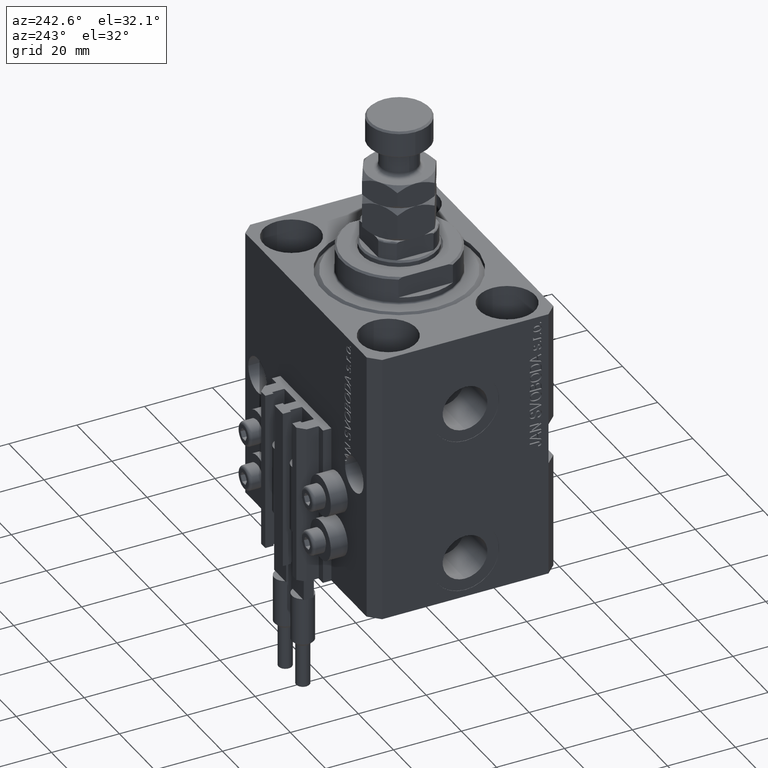
[diagram: clean part render]
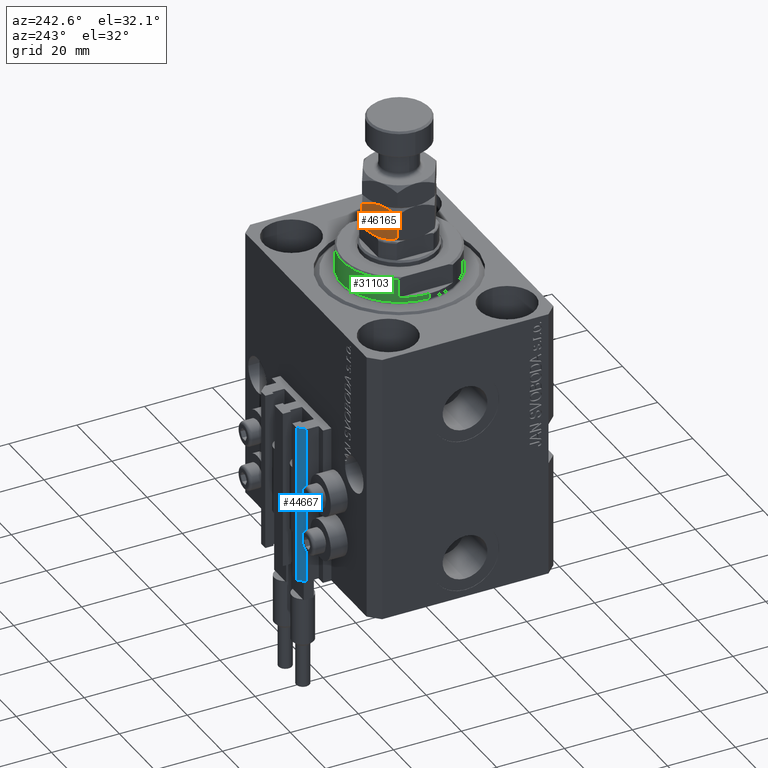
[diagram: same view with three faces highlighted in distinct colors, each labeled with its STEP entity id]
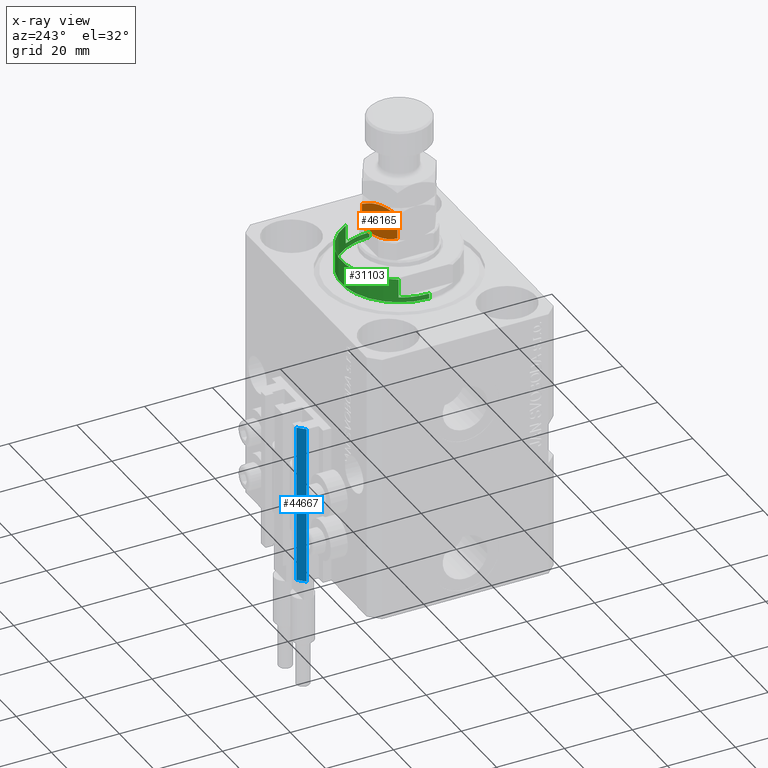
[diagram: x-ray of the same camera — body ghosted, the three highlighted faces saturated]
A machine part, auxiliary view with three faces highlighted in distinct colors.
The next image is the same camera in x-ray (body ghosted, the three faces saturated) — at least one of them is partly hidden behind the body in this view.
Their STEP definitions:

[orange] entity #46165 — the highlighted planar face has unit normal (0.5, -0.866, 0).
#104 = ORIENTED_EDGE ( 'NONE', *, *, #16884, .T. ) ;
#827 = CARTESIAN_POINT ( 'NONE',  ( -4.749999999999993783, 8.227241335952166779, 10.00000000000000000 ) ) ;
#1832 = VERTEX_POINT ( 'NONE', #28460 ) ;
#2153 = CARTESIAN_POINT ( 'NONE',  ( -3.111617971331824162, 9.173161641239182984, 0.1458756157754679816 ) ) ;
#4069 = CARTESIAN_POINT ( 'NONE',  ( -0.7448681452486597410, 10.53960529043279770, 8.960394709567207627 ) ) ;
#5522 = ORIENTED_EDGE ( 'NONE', *, *, #31213, .F. ) ;
#7882 = B_SPLINE_CURVE_WITH_KNOTS ( 'NONE', 3,
 ( #38230, #4069, #19270, #15525, #30749, #45931, #34987, #827 ),
 .UNSPECIFIED., .F., .F.,
 ( 4, 2, 2, 4 ),
 ( 2.544312669947217931E-07, 0.002843014744722341131, 0.004264394901450013070, 0.005685775058177684575 ),
 .UNSPECIFIED. ) ;
#9681 = DIRECTION ( 'NONE',  ( 0.4999999999999995004, -0.8660254037844390407, 0.000000000000000000 ) ) ;
#10819 = ORIENTED_EDGE ( 'NONE', *, *, #45785, .F. ) ;
#11235 = ORIENTED_EDGE ( 'NONE', *, *, #27668, .F. ) ;
#11771 = VERTEX_POINT ( 'NONE', #20514 ) ;
#12054 = CARTESIAN_POINT ( 'NONE',  ( -5.576215397865946777, 7.750225653585649077, 10.00000000000000000 ) ) ;
#13876 = B_SPLINE_CURVE_WITH_KNOTS ( 'NONE', 3,
 ( #36321, #43071, #2153, #47279, #24116, #39322 ),
 .UNSPECIFIED., .F., .F.,
 ( 4, 2, 4 ),
 ( 0.005685775058177695851, 0.008508623398180325398, 0.01133147173818295494 ),
 .UNSPECIFIED. ) ;
#14574 = CARTESIAN_POINT ( 'NONE',  ( -8.755131854751338594, 5.914877381471542961, 1.039605290432796147 ) ) ;
#14630 = PLANE ( 'NONE',  #28799 ) ;
#14810 = ORIENTED_EDGE ( 'NONE', *, *, #28692, .F. ) ;
#15525 = CARTESIAN_POINT ( 'NONE',  ( -2.690254945947323506, 9.416435697371474234, 9.716537861568806278 ) ) ;
#16499 = CARTESIAN_POINT ( 'NONE',  ( -9.500000000000000000, 5.484827557301449552, 10.00000000000000000 ) ) ;
#16884 = EDGE_CURVE ( 'NONE', #11771, #1832, #33024, .T. ) ;
#18799 = CARTESIAN_POINT ( 'NONE',  ( -5.588267949974988547, 7.743267109381076096, 0.03770576873300184734 ) ) ;
#18933 = VERTEX_POINT ( 'NONE', #28152 ) ;
#19040 = VERTEX_POINT ( 'NONE', #36628 ) ;
#19270 = CARTESIAN_POINT ( 'NONE',  ( -1.506594318812380706, 10.09982247907699993, 9.325825117528726338 ) ) ;
#19745 = DIRECTION ( 'NONE',  ( -0.000000000000000000, -0.000000000000000000, -1.000000000000000000 ) ) ;
#19854 = CARTESIAN_POINT ( 'NONE',  ( -9.500000000000000000, 5.484827557301450440, 8.530344885397113330 ) ) ;
#20514 = CARTESIAN_POINT ( 'NONE',  ( -3.412354640325339130E-17, 10.96965511460288667, 8.530344885397118659 ) ) ;
#21333 = VERTEX_POINT ( 'NONE', #48012 ) ;
#22052 = CARTESIAN_POINT ( 'NONE',  ( -4.749999999999995559, 8.227241335952170331, 0.000000000000000000 ) ) ;
#22543 = CARTESIAN_POINT ( 'NONE',  ( -7.993405681187618406, 6.354660192827338960, 0.6741748824712797683 ) ) ;
#23514 = CARTESIAN_POINT ( 'NONE',  ( -7.990178599141542826, 6.356523349515339483, 9.328363030548731061 ) ) ;
#23612 = VERTEX_POINT ( 'NONE', #19854 ) ;
#24116 = CARTESIAN_POINT ( 'NONE',  ( -0.7440058743609621050, 10.54010312276192174, 1.040103122761827148 ) ) ;
#25856 = DIRECTION ( 'NONE',  ( 0.8660254037844389297, 0.4999999999999994449, 0.000000000000000000 ) ) ;
#26541 = CARTESIAN_POINT ( 'NONE',  ( -9.500000000000000000, 5.484827557301450440, 1.469655114602887114 ) ) ;
#27668 = EDGE_CURVE ( 'NONE', #19040, #1832, #13876, .T. ) ;
#28152 = CARTESIAN_POINT ( 'NONE',  ( -4.749999999999993783, 8.227241335952166779, 10.00000000000000000 ) ) ;
#28460 = CARTESIAN_POINT ( 'NONE',  ( 7.043584025308272669E-16, 10.96965511460288667, 1.469655114602882007 ) ) ;
#28692 = EDGE_CURVE ( 'NONE', #11771, #18933, #7882, .T. ) ;
#28799 = AXIS2_PLACEMENT_3D ( 'NONE', #43829, #9681, #25856 ) ;
#30010 = CARTESIAN_POINT ( 'NONE',  ( -8.755994125639032788, 5.914379549142415371, 8.959896877238170632 ) ) ;
#30749 = CARTESIAN_POINT ( 'NONE',  ( -3.091726368128223879, 9.184646063703393537, 9.820258145287965590 ) ) ;
#30756 = CARTESIAN_POINT ( 'NONE',  ( -4.749999999999993783, 8.227241335952166779, 10.00000000000000000 ) ) ;
#31213 = EDGE_CURVE ( 'NONE', #21333, #19040, #42806, .T. ) ;
#32698 = VECTOR ( 'NONE', #37265, 1000.000000000000000 ) ;
#33024 = LINE ( 'NONE', #48233, #32698 ) ;
#34381 = ORIENTED_EDGE ( 'NONE', *, *, #48921, .F. ) ;
#34987 = CARTESIAN_POINT ( 'NONE',  ( -4.333978297711722938, 8.467431577757031036, 9.999999999999998224 ) ) ;
#35811 = B_SPLINE_CURVE_WITH_KNOTS ( 'NONE', 3,
 ( #30756, #12054, #42467, #23514, #30010, #45212 ),
 .UNSPECIFIED., .F., .F.,
 ( 4, 2, 4 ),
 ( 0.005685775058177684575, 0.008508623398180318459, 0.01133147173818295321 ),
 .UNSPECIFIED. ) ;
#36321 = CARTESIAN_POINT ( 'NONE',  ( -4.749999999999995559, 8.227241335952170331, 0.000000000000000000 ) ) ;
#36628 = CARTESIAN_POINT ( 'NONE',  ( -4.749999999999995559, 8.227241335952170331, 0.000000000000000000 ) ) ;
#36649 = EDGE_LOOP ( 'NONE', ( #5522, #34381, #10819, #14810, #104, #11235 ) ) ;
#37265 = DIRECTION ( 'NONE',  ( -0.000000000000000000, -0.000000000000000000, -1.000000000000000000 ) ) ;
#37328 = FACE_OUTER_BOUND ( 'NONE', #36649, .T. ) ;
#38007 = CARTESIAN_POINT ( 'NONE',  ( -6.809745054052670277, 7.038046974532860212, 0.2834621384311906689 ) ) ;
#38230 = CARTESIAN_POINT ( 'NONE',  ( -3.412354640325339130E-17, 10.96965511460288667, 8.530344885397118659 ) ) ;
#39322 = CARTESIAN_POINT ( 'NONE',  ( 7.043584025308272669E-16, 10.96965511460288667, 1.469655114602882007 ) ) ;
#42467 = CARTESIAN_POINT ( 'NONE',  ( -6.388382028668171841, 7.281321030665156790, 9.854124384224531852 ) ) ;
#42806 = B_SPLINE_CURVE_WITH_KNOTS ( 'NONE', 3,
 ( #26541, #14574, #22543, #38007, #45711, #18799, #44980, #22052 ),
 .UNSPECIFIED., .F., .F.,
 ( 4, 2, 2, 4 ),
 ( 2.544312669946945821E-07, 0.002843014744722347636, 0.004264394901450021744, 0.005685775058177695851 ),
 .UNSPECIFIED. ) ;
#43071 = CARTESIAN_POINT ( 'NONE',  ( -3.923784602134044341, 8.704257018318687145, 8.233160247311796338E-16 ) ) ;
#43183 = LINE ( 'NONE', #16499, #45739 ) ;
#43829 = CARTESIAN_POINT ( 'NONE',  ( 0.000000000000000000, 10.96965511460288667, 10.00000000000000000 ) ) ;
#44980 = CARTESIAN_POINT ( 'NONE',  ( -5.166021702288269957, 7.987051094147307850, 9.131015171401357655E-16 ) ) ;
#45212 = CARTESIAN_POINT ( 'NONE',  ( -9.500000000000000000, 5.484827557301450440, 8.530344885397113330 ) ) ;
#45711 = CARTESIAN_POINT ( 'NONE',  ( -6.408273631871772125, 7.269836608200945349, 0.1797418547120365750 ) ) ;
#45739 = VECTOR ( 'NONE', #19745, 1000.000000000000000 ) ;
#45785 = EDGE_CURVE ( 'NONE', #18933, #23612, #35811, .T. ) ;
#45931 = CARTESIAN_POINT ( 'NONE',  ( -3.911732050025008789, 8.711215562523269895, 9.962294231267003752 ) ) ;
#46165 = ADVANCED_FACE ( 'NONE', ( #37328 ), #14630, .F. ) ;
#47279 = CARTESIAN_POINT ( 'NONE',  ( -1.509821400858455398, 10.09795932238899852, 0.6716369694512650534 ) ) ;
#48012 = CARTESIAN_POINT ( 'NONE',  ( -9.500000000000000000, 5.484827557301450440, 1.469655114602887114 ) ) ;
#48233 = CARTESIAN_POINT ( 'NONE',  ( 0.000000000000000000, 10.96965511460288667, 10.00000000000000000 ) ) ;
#48921 = EDGE_CURVE ( 'NONE', #23612, #21333, #43183, .T. ) ;

[blue] entity #44667 — the highlighted planar face has unit normal (-0.7071, 0.7071, 0).
#686 = LINE ( 'NONE', #45794, #11196 ) ;
#1121 = CARTESIAN_POINT ( 'NONE',  ( -10.00000000000000000, 35.50000000000000000, -80.00000000000000000 ) ) ;
#1326 = EDGE_CURVE ( 'NONE', #2169, #13976, #31349, .T. ) ;
#1597 = ORIENTED_EDGE ( 'NONE', *, *, #22079, .F. ) ;
#2169 = VERTEX_POINT ( 'NONE', #20182 ) ;
#4041 = CARTESIAN_POINT ( 'NONE',  ( -10.00000000000000000, 35.50000000000000000, -33.00000000000000000 ) ) ;
#4068 = AXIS2_PLACEMENT_3D ( 'NONE', #1121, #5104, #28530 ) ;
#5104 = DIRECTION ( 'NONE',  ( -0.7071067811865490160, 0.7071067811865461294, 0.000000000000000000 ) ) ;
#6717 = CARTESIAN_POINT ( 'NONE',  ( -12.00000000000000000, 33.49999999999998579, -33.00000000000000000 ) ) ;
#8178 = DIRECTION ( 'NONE',  ( 0.000000000000000000, 0.000000000000000000, 1.000000000000000000 ) ) ;
#8782 = CARTESIAN_POINT ( 'NONE',  ( -10.00000000000000000, 35.50000000000000000, -80.00000000000000000 ) ) ;
#9001 = ORIENTED_EDGE ( 'NONE', *, *, #42525, .F. ) ;
#9290 = CARTESIAN_POINT ( 'NONE',  ( -10.00000000000000000, 35.50000000000000000, -80.00000000000000000 ) ) ;
#9337 = PLANE ( 'NONE',  #4068 ) ;
#11196 = VECTOR ( 'NONE', #19624, 1000.000000000000227 ) ;
#11914 = VERTEX_POINT ( 'NONE', #4041 ) ;
#13054 = VECTOR ( 'NONE', #32714, 1000.000000000000000 ) ;
#13976 = VERTEX_POINT ( 'NONE', #6717 ) ;
#15542 = VECTOR ( 'NONE', #8178, 1000.000000000000000 ) ;
#15635 = CARTESIAN_POINT ( 'NONE',  ( -12.00000000000000000, 33.49999999999998579, -80.00000000000000000 ) ) ;
#15772 = ORIENTED_EDGE ( 'NONE', *, *, #42808, .T. ) ;
#18331 = VERTEX_POINT ( 'NONE', #8782 ) ;
#19624 = DIRECTION ( 'NONE',  ( -0.7071067811865460184, -0.7071067811865490160, 0.000000000000000000 ) ) ;
#20182 = CARTESIAN_POINT ( 'NONE',  ( -12.00000000000000000, 33.49999999999998579, -80.00000000000000000 ) ) ;
#21670 = ORIENTED_EDGE ( 'NONE', *, *, #1326, .T. ) ;
#22079 = EDGE_CURVE ( 'NONE', #18331, #11914, #47667, .T. ) ;
#22320 = DIRECTION ( 'NONE',  ( -0.7071067811865460184, -0.7071067811865490160, 0.000000000000000000 ) ) ;
#28530 = DIRECTION ( 'NONE',  ( -0.7071067811865460184, -0.7071067811865489050, 0.000000000000000000 ) ) ;
#31349 = LINE ( 'NONE', #15635, #15542 ) ;
#32714 = DIRECTION ( 'NONE',  ( 0.000000000000000000, 0.000000000000000000, 1.000000000000000000 ) ) ;
#32810 = CARTESIAN_POINT ( 'NONE',  ( -10.00000000000000000, 35.50000000000000000, -80.00000000000000000 ) ) ;
#36019 = FACE_OUTER_BOUND ( 'NONE', #44851, .T. ) ;
#40551 = LINE ( 'NONE', #32810, #45416 ) ;
#42525 = EDGE_CURVE ( 'NONE', #11914, #13976, #686, .T. ) ;
#42808 = EDGE_CURVE ( 'NONE', #18331, #2169, #40551, .T. ) ;
#44667 = ADVANCED_FACE ( 'NONE', ( #36019 ), #9337, .T. ) ;
#44851 = EDGE_LOOP ( 'NONE', ( #9001, #1597, #15772, #21670 ) ) ;
#45416 = VECTOR ( 'NONE', #22320, 1000.000000000000227 ) ;
#45794 = CARTESIAN_POINT ( 'NONE',  ( -10.00000000000000000, 35.50000000000000000, -33.00000000000000000 ) ) ;
#47667 = LINE ( 'NONE', #9290, #13054 ) ;

[green] entity #31103 — the highlighted cylindrical surface (partial cylindrical patch) has radius 17 mm, axis along (0, 0, -1).
#1615 = CARTESIAN_POINT ( 'NONE',  ( -14.99999999999999645, 8.000000000000003553, -2.000000000000000000 ) ) ;
#2690 = VECTOR ( 'NONE', #23828, 1000.000000000000000 ) ;
#2982 = DIRECTION ( 'NONE',  ( -1.000000000000000000, 0.000000000000000000, 0.000000000000000000 ) ) ;
#4353 = CARTESIAN_POINT ( 'NONE',  ( -17.00000000000000000, 2.081899558550500280E-15, -0.5000000000000004441 ) ) ;
#5131 = DIRECTION ( 'NONE',  ( -0.000000000000000000, -0.000000000000000000, 1.000000000000000000 ) ) ;
#8555 = DIRECTION ( 'NONE',  ( 0.000000000000000000, 0.000000000000000000, 1.000000000000000000 ) ) ;
#8601 = VERTEX_POINT ( 'NONE', #4353 ) ;
#9034 = LINE ( 'NONE', #12785, #31531 ) ;
#9361 = ORIENTED_EDGE ( 'NONE', *, *, #17940, .T. ) ;
#10096 = AXIS2_PLACEMENT_3D ( 'NONE', #27336, #5131, #42544 ) ;
#11758 = CARTESIAN_POINT ( 'NONE',  ( -15.00000000000000000, 8.000000000000001776, -7.500000000000013323 ) ) ;
#12129 = FACE_OUTER_BOUND ( 'NONE', #45575, .T. ) ;
#12736 = EDGE_CURVE ( 'NONE', #45246, #33564, #46058, .T. ) ;
#12785 = CARTESIAN_POINT ( 'NONE',  ( -17.00000000000000000, 2.081899558550500280E-15, -8.000000000000000000 ) ) ;
#13247 = DIRECTION ( 'NONE',  ( 1.000000000000000000, 0.000000000000000000, 0.000000000000000000 ) ) ;
#13717 = DIRECTION ( 'NONE',  ( 0.000000000000000000, 0.000000000000000000, -1.000000000000000000 ) ) ;
#14472 = DIRECTION ( 'NONE',  ( 0.000000000000000000, 0.000000000000000000, -1.000000000000000000 ) ) ;
#15011 = DIRECTION ( 'NONE',  ( -0.000000000000000000, -0.000000000000000000, 1.000000000000000000 ) ) ;
#15046 = EDGE_CURVE ( 'NONE', #20731, #20501, #15899, .T. ) ;
#15630 = CARTESIAN_POINT ( 'NONE',  ( 17.00000000000000000, 0.000000000000000000, -0.5000000000000004441 ) ) ;
#15674 = VECTOR ( 'NONE', #15011, 1000.000000000000000 ) ;
#15899 = CIRCLE ( 'NONE', #43760, 17.00000000000000000 ) ;
#17940 = EDGE_CURVE ( 'NONE', #33564, #20501, #38765, .T. ) ;
#19068 = VERTEX_POINT ( 'NONE', #41109 ) ;
#19585 = LINE ( 'NONE', #27322, #2690 ) ;
#20006 = DIRECTION ( 'NONE',  ( -1.000000000000000000, 0.000000000000000000, 0.000000000000000000 ) ) ;
#20483 = ORIENTED_EDGE ( 'NONE', *, *, #12736, .T. ) ;
#20501 = VERTEX_POINT ( 'NONE', #1615 ) ;
#20731 = VERTEX_POINT ( 'NONE', #23510 ) ;
#21430 = AXIS2_PLACEMENT_3D ( 'NONE', #25697, #14472, #40908 ) ;
#21614 = EDGE_CURVE ( 'NONE', #45246, #19068, #19585, .T. ) ;
#23510 = CARTESIAN_POINT ( 'NONE',  ( -17.00000000000000000, 2.081899558550500280E-15, -2.000000000000000000 ) ) ;
#23752 = CARTESIAN_POINT ( 'NONE',  ( 0.000000000000000000, 0.000000000000000000, -7.500000000000013323 ) ) ;
#23828 = DIRECTION ( 'NONE',  ( -0.000000000000000000, -0.000000000000000000, 1.000000000000000000 ) ) ;
#24440 = ORIENTED_EDGE ( 'NONE', *, *, #28781, .T. ) ;
#25502 = LINE ( 'NONE', #36959, #15674 ) ;
#25697 = CARTESIAN_POINT ( 'NONE',  ( 0.000000000000000000, 0.000000000000000000, -2.000000000000000000 ) ) ;
#26075 = CARTESIAN_POINT ( 'NONE',  ( 17.00000000000000000, 0.000000000000000000, -2.000000000000000000 ) ) ;
#26802 = CARTESIAN_POINT ( 'NONE',  ( -15.00000000000000000, 8.000000000000001776, -8.000000000000000000 ) ) ;
#27298 = ORIENTED_EDGE ( 'NONE', *, *, #15046, .F. ) ;
#27322 = CARTESIAN_POINT ( 'NONE',  ( 15.00000000000000000, 8.000000000000001776, -8.000000000000000000 ) ) ;
#27336 = CARTESIAN_POINT ( 'NONE',  ( 0.000000000000000000, 0.000000000000000000, -8.000000000000000000 ) ) ;
#27723 = VERTEX_POINT ( 'NONE', #26075 ) ;
#27749 = AXIS2_PLACEMENT_3D ( 'NONE', #23752, #8555, #20006 ) ;
#28781 = EDGE_CURVE ( 'NONE', #20731, #8601, #9034, .T. ) ;
#29775 = AXIS2_PLACEMENT_3D ( 'NONE', #47389, #36427, #13247 ) ;
#31036 = ORIENTED_EDGE ( 'NONE', *, *, #47906, .T. ) ;
#31103 = ADVANCED_FACE ( 'NONE', ( #12129 ), #43280, .T. ) ;
#31531 = VECTOR ( 'NONE', #39691, 1000.000000000000000 ) ;
#31652 = EDGE_CURVE ( 'NONE', #27723, #35131, #25502, .T. ) ;
#33564 = VERTEX_POINT ( 'NONE', #11758 ) ;
#34588 = CIRCLE ( 'NONE', #29775, 17.00000000000000000 ) ;
#35131 = VERTEX_POINT ( 'NONE', #15630 ) ;
#36427 = DIRECTION ( 'NONE',  ( -0.000000000000000000, -0.000000000000000000, -1.000000000000000000 ) ) ;
#36959 = CARTESIAN_POINT ( 'NONE',  ( 17.00000000000000000, 0.000000000000000000, -8.000000000000000000 ) ) ;
#37299 = EDGE_CURVE ( 'NONE', #19068, #27723, #42946, .T. ) ;
#38765 = LINE ( 'NONE', #26802, #39080 ) ;
#39080 = VECTOR ( 'NONE', #49228, 1000.000000000000000 ) ;
#39691 = DIRECTION ( 'NONE',  ( -0.000000000000000000, -0.000000000000000000, 1.000000000000000000 ) ) ;
#39946 = ORIENTED_EDGE ( 'NONE', *, *, #31652, .F. ) ;
#40908 = DIRECTION ( 'NONE',  ( -1.000000000000000000, 0.000000000000000000, 0.000000000000000000 ) ) ;
#41109 = CARTESIAN_POINT ( 'NONE',  ( 14.99999999999999645, 8.000000000000003553, -2.000000000000000000 ) ) ;
#42544 = DIRECTION ( 'NONE',  ( 1.000000000000000000, 0.000000000000000000, 0.000000000000000000 ) ) ;
#42946 = CIRCLE ( 'NONE', #21430, 17.00000000000000000 ) ;
#43280 = CYLINDRICAL_SURFACE ( 'NONE', #10096, 17.00000000000000000 ) ;
#43760 = AXIS2_PLACEMENT_3D ( 'NONE', #45105, #13717, #2982 ) ;
#45105 = CARTESIAN_POINT ( 'NONE',  ( 0.000000000000000000, 0.000000000000000000, -2.000000000000000000 ) ) ;
#45246 = VERTEX_POINT ( 'NONE', #45329 ) ;
#45329 = CARTESIAN_POINT ( 'NONE',  ( 15.00000000000000000, 8.000000000000001776, -7.500000000000013323 ) ) ;
#45575 = EDGE_LOOP ( 'NONE', ( #27298, #24440, #31036, #39946, #47054, #46537, #20483, #9361 ) ) ;
#46058 = CIRCLE ( 'NONE', #27749, 17.00000000000000000 ) ;
#46537 = ORIENTED_EDGE ( 'NONE', *, *, #21614, .F. ) ;
#47054 = ORIENTED_EDGE ( 'NONE', *, *, #37299, .F. ) ;
#47389 = CARTESIAN_POINT ( 'NONE',  ( 0.000000000000000000, 0.000000000000000000, -0.5000000000000004441 ) ) ;
#47906 = EDGE_CURVE ( 'NONE', #8601, #35131, #34588, .T. ) ;
#49228 = DIRECTION ( 'NONE',  ( -0.000000000000000000, -0.000000000000000000, 1.000000000000000000 ) ) ;